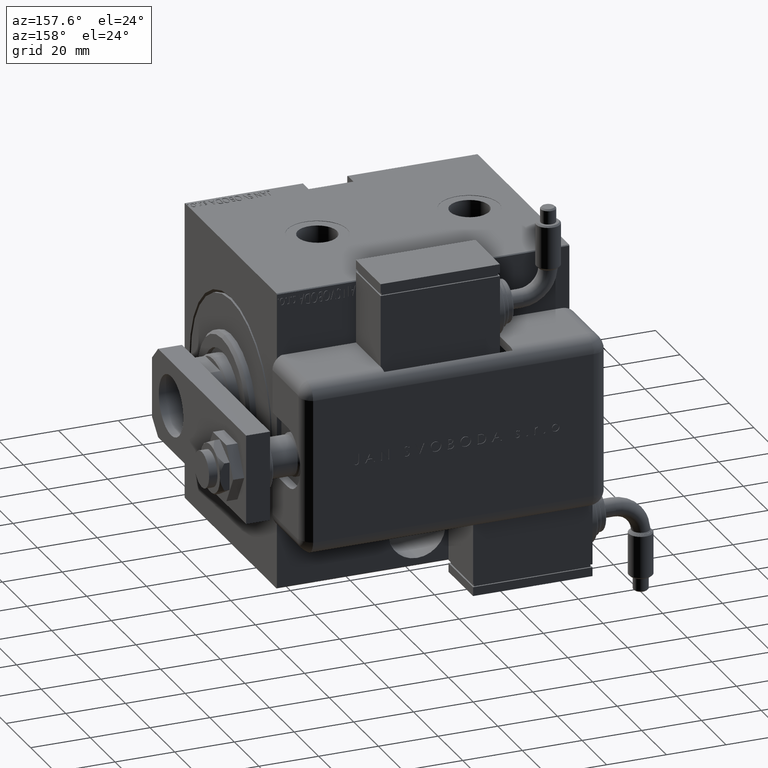
[diagram: clean part render]
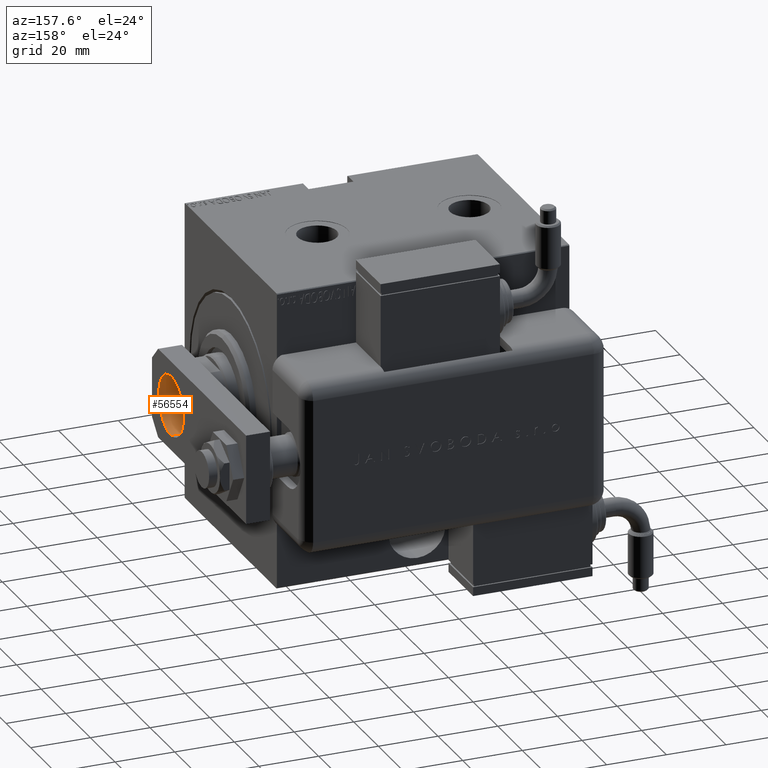
[diagram: same view with one face highlighted and labeled with its STEP entity id]
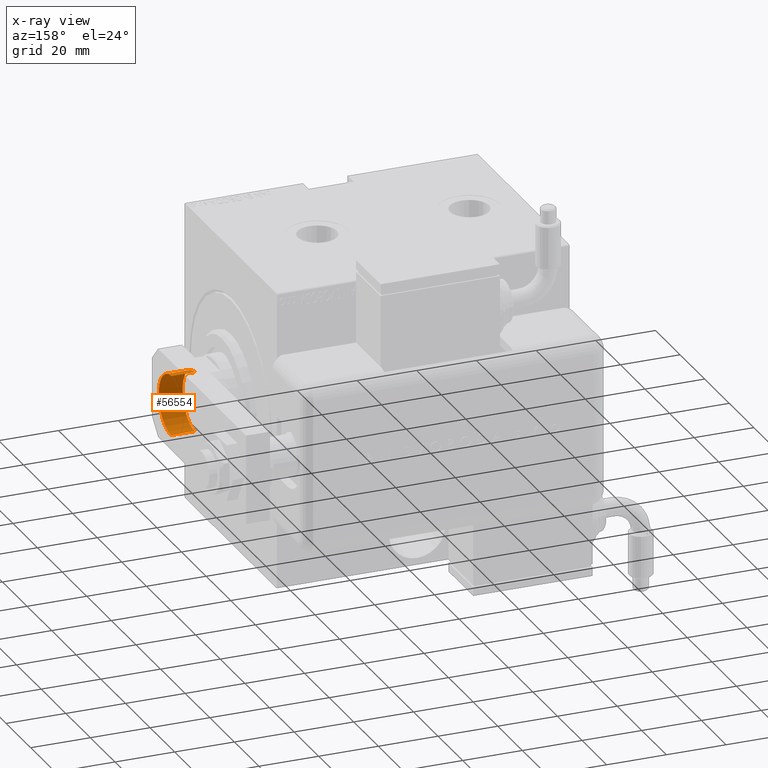
[diagram: x-ray of the same camera — body ghosted, the highlighted face saturated]
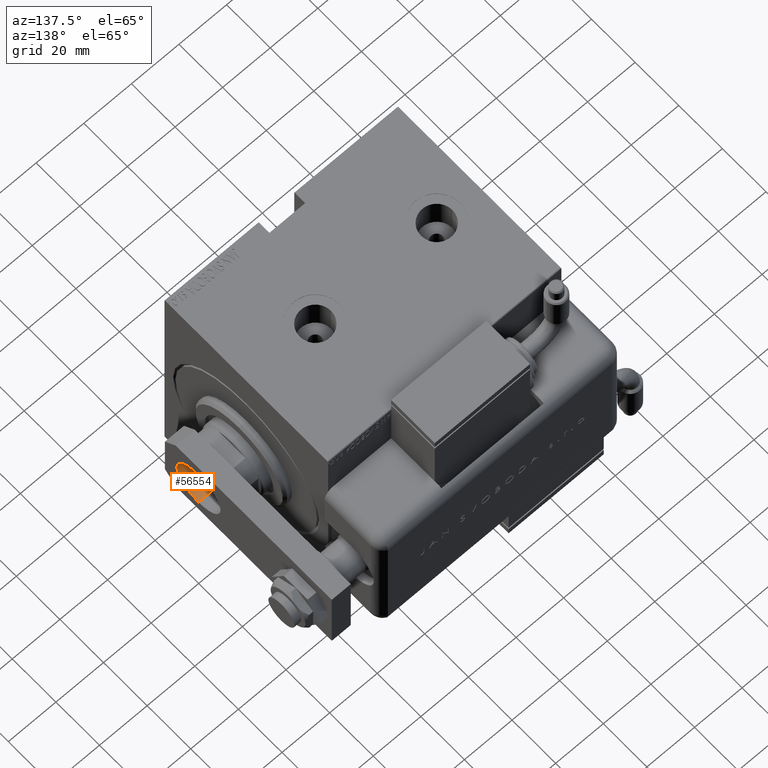
[diagram: same view with one face highlighted and labeled with its STEP entity id]
A machine part, auxiliary view. The second image highlights one B-rep face of the part: STEP entity #56554.
The next image is the same camera in x-ray: the body ghosted, the highlighted face saturated — about 0% of this face is hidden behind the body in this view.
A second angle (auxiliary view) of the same face is appended — the face is thin or edge-on in the first view.
In plain terms, the highlighted cylindrical surface (edge-blend (fillet) strip) has radius 10 mm, axis along (1, -0, -0).
Its self-contained STEP definition (entity closure, byte-faithful):
#3160 = ORIENTED_EDGE ( 'NONE', *, *, #45962, .F. ) ;
#3817 = CIRCLE ( 'NONE', #26592, 10.00000000000000711 ) ;
#4689 = DIRECTION ( 'NONE',  ( -0.000000000000000000, -0.000000000000000000, -1.000000000000000000 ) ) ;
#5278 = VERTEX_POINT ( 'NONE', #45646 ) ;
#7020 = EDGE_CURVE ( 'NONE', #12269, #45289, #3817, .T. ) ;
#9647 = ORIENTED_EDGE ( 'NONE', *, *, #45690, .T. ) ;
#10033 = DIRECTION ( 'NONE',  ( 1.000000000000000000, 0.000000000000000000, 0.000000000000000000 ) ) ;
#11400 = CARTESIAN_POINT ( 'NONE',  ( 0.000000000000000000, 15.50000000000000000, 8.000000000000000000 ) ) ;
#12269 = VERTEX_POINT ( 'NONE', #15978 ) ;
#13681 = VECTOR ( 'NONE', #49450, 1000.000000000000000 ) ;
#15978 = CARTESIAN_POINT ( 'NONE',  ( -10.00000000000000711, 15.50000000000000000, 0.000000000000000000 ) ) ;
#16052 = DIRECTION ( 'NONE',  ( 1.000000000000000000, 0.000000000000000000, 0.000000000000000000 ) ) ;
#19261 = CARTESIAN_POINT ( 'NONE',  ( 0.000000000000000000, 15.50000000000000000, 8.000000000000000000 ) ) ;
#19591 = VERTEX_POINT ( 'NONE', #24348 ) ;
#24223 = DIRECTION ( 'NONE',  ( -1.000000000000000000, 0.000000000000000000, 0.000000000000000000 ) ) ;
#24348 = CARTESIAN_POINT ( 'NONE',  ( -10.00000000000000711, 15.50000000000000000, 8.000000000000000000 ) ) ;
#26592 = AXIS2_PLACEMENT_3D ( 'NONE', #28365, #57222, #10033 ) ;
#28365 = CARTESIAN_POINT ( 'NONE',  ( 0.000000000000000000, 15.50000000000000000, 0.000000000000000000 ) ) ;
#32878 = DIRECTION ( 'NONE',  ( -0.000000000000000000, -0.000000000000000000, -1.000000000000000000 ) ) ;
#33509 = VECTOR ( 'NONE', #32878, 1000.000000000000000 ) ;
#33563 = CYLINDRICAL_SURFACE ( 'NONE', #58795, 10.00000000000000711 ) ;
#35944 = CARTESIAN_POINT ( 'NONE',  ( 10.00000000000000711, 15.50000000000000178, 0.000000000000000000 ) ) ;
#36322 = CARTESIAN_POINT ( 'NONE',  ( -10.00000000000000711, 15.50000000000000000, 8.000000000000000000 ) ) ;
#36628 = EDGE_CURVE ( 'NONE', #19591, #5278, #54101, .T. ) ;
#39835 = LINE ( 'NONE', #58737, #13681 ) ;
#41578 = ORIENTED_EDGE ( 'NONE', *, *, #36628, .T. ) ;
#45289 = VERTEX_POINT ( 'NONE', #35944 ) ;
#45646 = CARTESIAN_POINT ( 'NONE',  ( 10.00000000000000711, 15.50000000000000178, 8.000000000000000000 ) ) ;
#45690 = EDGE_CURVE ( 'NONE', #5278, #45289, #39835, .T. ) ;
#45962 = EDGE_CURVE ( 'NONE', #19591, #12269, #56463, .T. ) ;
#46545 = ORIENTED_EDGE ( 'NONE', *, *, #7020, .F. ) ;
#49450 = DIRECTION ( 'NONE',  ( -0.000000000000000000, -0.000000000000000000, -1.000000000000000000 ) ) ;
#52184 = FACE_OUTER_BOUND ( 'NONE', #54483, .T. ) ;
#54101 = CIRCLE ( 'NONE', #59038, 10.00000000000000711 ) ;
#54483 = EDGE_LOOP ( 'NONE', ( #41578, #9647, #46545, #3160 ) ) ;
#56463 = LINE ( 'NONE', #36322, #33509 ) ;
#56554 = ADVANCED_FACE ( 'NONE', ( #52184 ), #33563, .F. ) ;
#57222 = DIRECTION ( 'NONE',  ( 0.000000000000000000, 0.000000000000000000, 1.000000000000000000 ) ) ;
#58560 = DIRECTION ( 'NONE',  ( 0.000000000000000000, 0.000000000000000000, 1.000000000000000000 ) ) ;
#58737 = CARTESIAN_POINT ( 'NONE',  ( 10.00000000000000711, 15.50000000000000178, 8.000000000000000000 ) ) ;
#58795 = AXIS2_PLACEMENT_3D ( 'NONE', #19261, #4689, #24223 ) ;
#59038 = AXIS2_PLACEMENT_3D ( 'NONE', #11400, #58560, #16052 ) ;